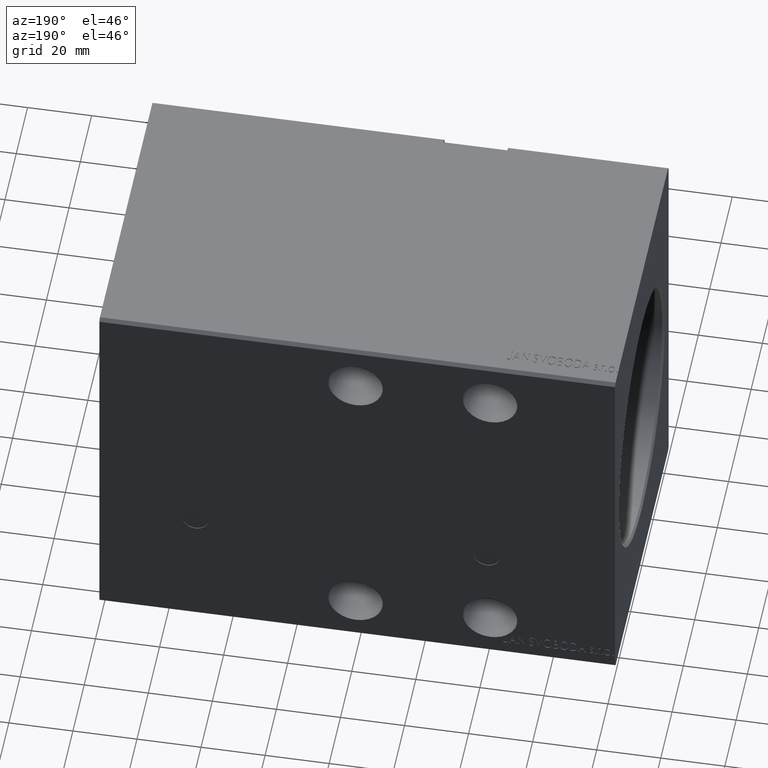
[diagram: clean part render]
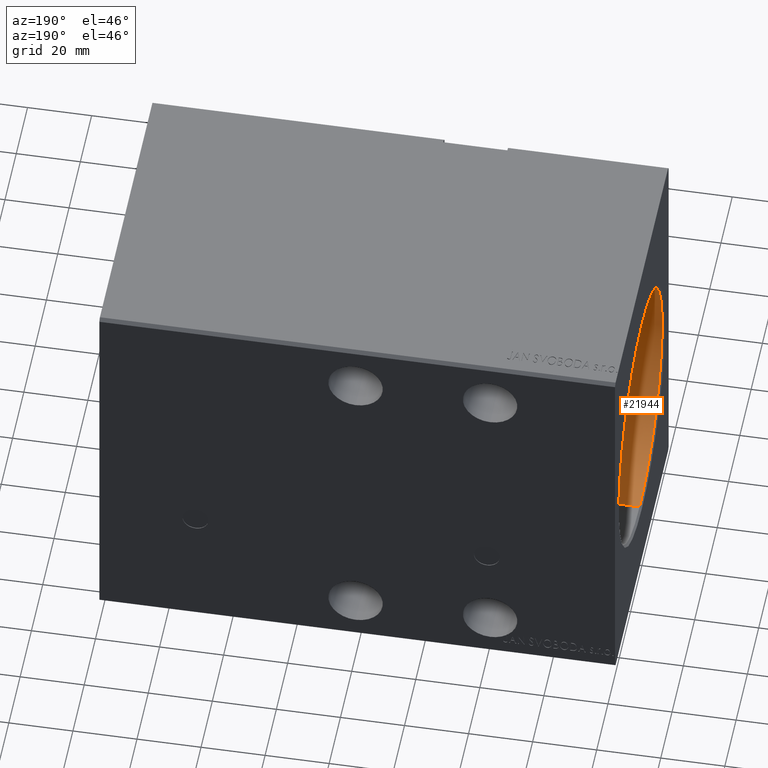
[diagram: same view with one face highlighted and labeled with its STEP entity id]
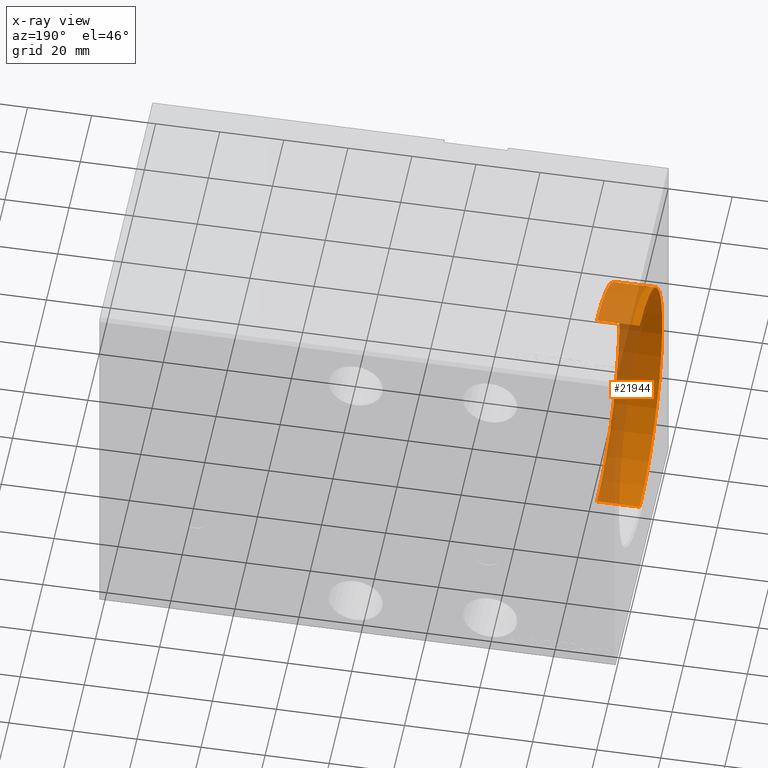
[diagram: x-ray of the same camera — body ghosted, the highlighted face saturated]
A machine part, auxiliary view. The second image highlights one B-rep face of the part: STEP entity #21944.
The next image is the same camera in x-ray: the body ghosted, the highlighted face saturated — about 44% of this face is hidden behind the body in this view.
In plain terms, the highlighted cylindrical surface (partial cylindrical patch) has radius 40 mm, axis along (-1, -0, -0).
Its self-contained STEP definition (entity closure, byte-faithful):
#982 = VERTEX_POINT ( 'NONE', #39473 ) ;
#2780 = AXIS2_PLACEMENT_3D ( 'NONE', #12278, #39152, #10133 ) ;
#3307 = EDGE_CURVE ( 'NONE', #21389, #982, #17728, .T. ) ;
#4590 = DIRECTION ( 'NONE',  ( -1.000000000000000000, -0.000000000000000000, -0.000000000000000000 ) ) ;
#4932 = CIRCLE ( 'NONE', #25378, 40.00000000000000000 ) ;
#10133 = DIRECTION ( 'NONE',  ( 0.000000000000000000, 0.000000000000000000, -1.000000000000000000 ) ) ;
#10981 = AXIS2_PLACEMENT_3D ( 'NONE', #20003, #33029, #36666 ) ;
#12278 = CARTESIAN_POINT ( 'NONE',  ( 0.7000000000000408118, 0.000000000000000000, 0.000000000000000000 ) ) ;
#12613 = CARTESIAN_POINT ( 'NONE',  ( 14.00000000000000000, 0.000000000000000000, 40.00000000000000000 ) ) ;
#12973 = ORIENTED_EDGE ( 'NONE', *, *, #17990, .F. ) ;
#12977 = CYLINDRICAL_SURFACE ( 'NONE', #10981, 40.00000000000000000 ) ;
#13981 = VECTOR ( 'NONE', #20924, 1000.000000000000000 ) ;
#14322 = CIRCLE ( 'NONE', #2780, 40.00000000000000000 ) ;
#15645 = VECTOR ( 'NONE', #4590, 1000.000000000000000 ) ;
#16633 = ORIENTED_EDGE ( 'NONE', *, *, #3307, .T. ) ;
#16842 = VERTEX_POINT ( 'NONE', #28844 ) ;
#17728 = LINE ( 'NONE', #20500, #13981 ) ;
#17990 = EDGE_CURVE ( 'NONE', #40419, #16842, #40829, .T. ) ;
#20003 = CARTESIAN_POINT ( 'NONE',  ( 14.00000000000000000, 0.000000000000000000, 0.000000000000000000 ) ) ;
#20097 = ORIENTED_EDGE ( 'NONE', *, *, #20555, .T. ) ;
#20500 = CARTESIAN_POINT ( 'NONE',  ( 14.00000000000000000, 4.898587196589413026E-15, -40.00000000000000000 ) ) ;
#20555 = EDGE_CURVE ( 'NONE', #982, #16842, #14322, .T. ) ;
#20924 = DIRECTION ( 'NONE',  ( -1.000000000000000000, -0.000000000000000000, -0.000000000000000000 ) ) ;
#21389 = VERTEX_POINT ( 'NONE', #36177 ) ;
#21732 = ORIENTED_EDGE ( 'NONE', *, *, #26872, .F. ) ;
#21944 = ADVANCED_FACE ( 'NONE', ( #23633 ), #12977, .F. ) ;
#22231 = DIRECTION ( 'NONE',  ( -1.000000000000000000, 0.000000000000000000, 0.000000000000000000 ) ) ;
#23633 = FACE_OUTER_BOUND ( 'NONE', #41360, .T. ) ;
#24817 = CARTESIAN_POINT ( 'NONE',  ( 14.00000000000000000, 0.000000000000000000, 40.00000000000000000 ) ) ;
#25378 = AXIS2_PLACEMENT_3D ( 'NONE', #38459, #22231, #26065 ) ;
#26065 = DIRECTION ( 'NONE',  ( 0.000000000000000000, 0.000000000000000000, 1.000000000000000000 ) ) ;
#26872 = EDGE_CURVE ( 'NONE', #21389, #40419, #4932, .T. ) ;
#28844 = CARTESIAN_POINT ( 'NONE',  ( 0.7000000000000408118, 0.000000000000000000, 40.00000000000000000 ) ) ;
#33029 = DIRECTION ( 'NONE',  ( -1.000000000000000000, -0.000000000000000000, -0.000000000000000000 ) ) ;
#36177 = CARTESIAN_POINT ( 'NONE',  ( 14.00000000000000000, 4.898587196589413026E-15, -40.00000000000000000 ) ) ;
#36666 = DIRECTION ( 'NONE',  ( 0.000000000000000000, 0.000000000000000000, 1.000000000000000000 ) ) ;
#38459 = CARTESIAN_POINT ( 'NONE',  ( 14.00000000000000000, 0.000000000000000000, 0.000000000000000000 ) ) ;
#39152 = DIRECTION ( 'NONE',  ( -1.000000000000000000, 0.000000000000000000, 0.000000000000000000 ) ) ;
#39473 = CARTESIAN_POINT ( 'NONE',  ( 0.7000000000000408118, 4.898587196589413026E-15, -40.00000000000000000 ) ) ;
#40419 = VERTEX_POINT ( 'NONE', #12613 ) ;
#40829 = LINE ( 'NONE', #24817, #15645 ) ;
#41360 = EDGE_LOOP ( 'NONE', ( #21732, #16633, #20097, #12973 ) ) ;